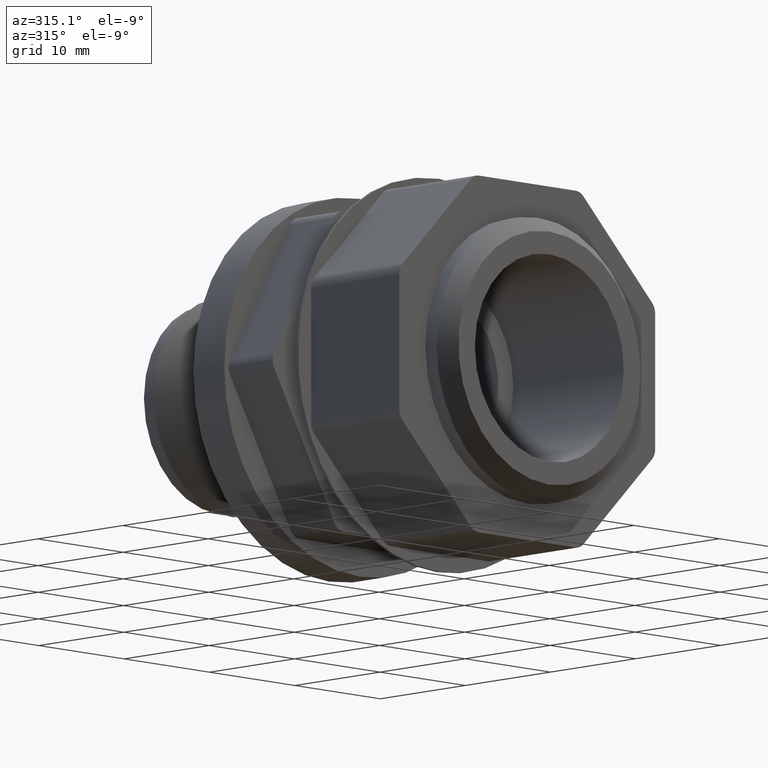
[diagram: clean part render]
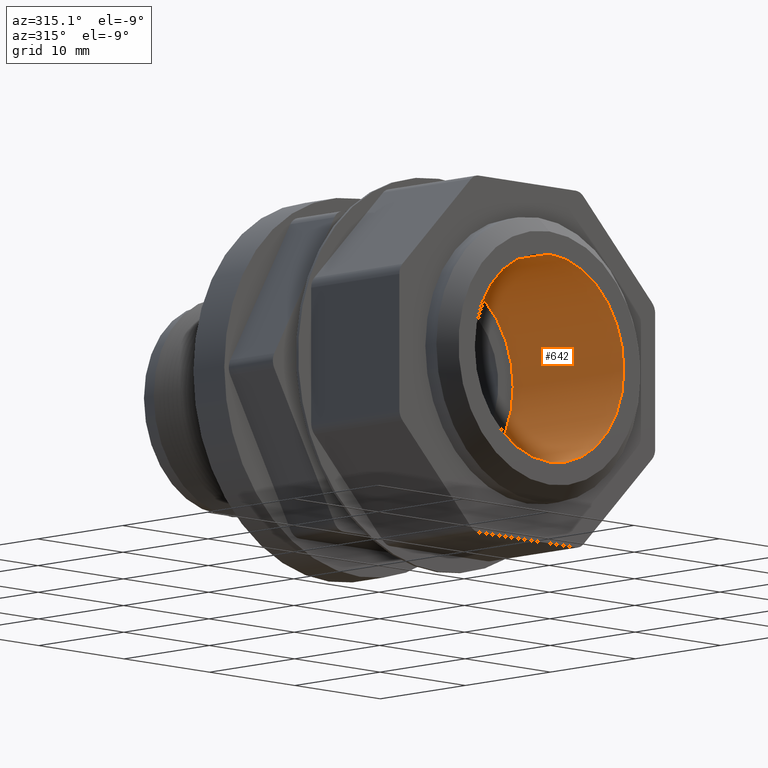
[diagram: same view with one face highlighted and labeled with its STEP entity id]
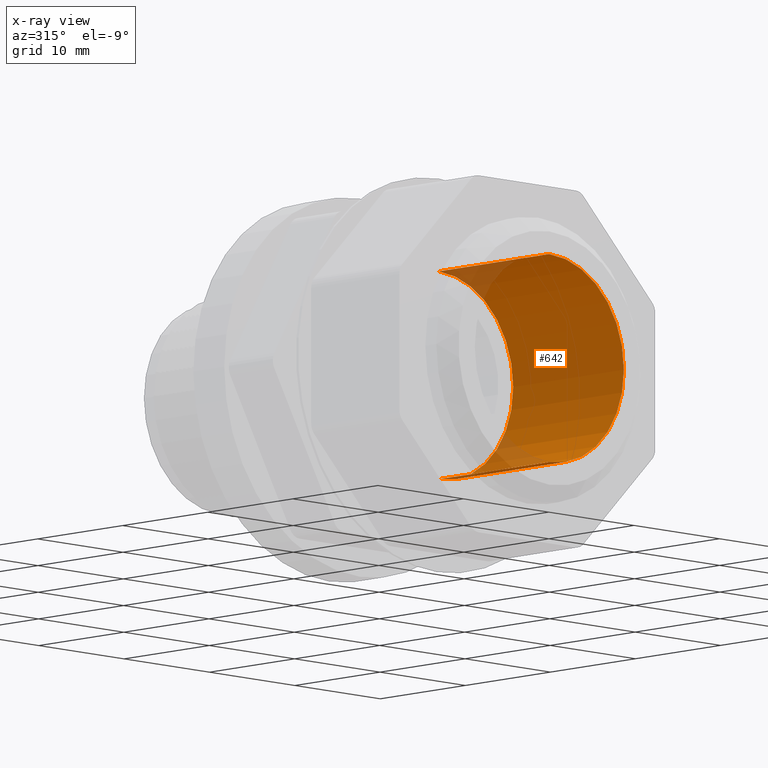
[diagram: x-ray of the same camera — body ghosted, the highlighted face saturated]
A machine part, auxiliary view. The second image highlights one B-rep face of the part: STEP entity #642.
The next image is the same camera in x-ray: the body ghosted, the highlighted face saturated — about 10% of this face is hidden behind the body in this view.
In plain terms, the highlighted cylindrical surface (partial cylindrical patch) has radius 8.7312 mm, axis along (-0, -1, -0).
Its self-contained STEP definition (entity closure, byte-faithful):
#549 = VERTEX_POINT ( 'NONE', #1714 ) ;
#550 = VERTEX_POINT ( 'NONE', #1713 ) ;
#552 = EDGE_CURVE ( 'NONE', #549, #553, #1712, .T. ) ;
#553 = VERTEX_POINT ( 'NONE', #1708 ) ;
#556 = VERTEX_POINT ( 'NONE', #1702 ) ;
#558 = EDGE_CURVE ( 'NONE', #550, #556, #1701, .T. ) ;
#623 = EDGE_CURVE ( 'NONE', #556, #553, #1839, .T. ) ;
#642 = ADVANCED_FACE ( 'NONE', ( #1889 ), #1884, .F. ) ;
#643 = EDGE_LOOP ( 'NONE', ( #644, #645, #647, #648 ) ) ;
#644 = ORIENTED_EDGE ( 'NONE', *, *, #552, .F. ) ;
#645 = ORIENTED_EDGE ( 'NONE', *, *, #646, .F. ) ;
#646 = EDGE_CURVE ( 'NONE', #550, #549, #1879, .T. ) ;
#647 = ORIENTED_EDGE ( 'NONE', *, *, #558, .T. ) ;
#648 = ORIENTED_EDGE ( 'NONE', *, *, #623, .T. ) ;
#1699 = VECTOR ( 'NONE', #1764, 39.37007874015748100 ) ;
#1700 = CARTESIAN_POINT ( 'NONE',  ( 0.0000000000000000000, 0.5120000000000000100, -0.3437500000000000000 ) ) ;
#1701 = LINE ( 'NONE', #1700, #1699 ) ;
#1702 = CARTESIAN_POINT ( 'NONE',  ( 0.0000000000000000000, 0.0000000000000000000, -0.3437500000000000000 ) ) ;
#1708 = CARTESIAN_POINT ( 'NONE',  ( 4.209723372069026300E-017, 0.0000000000000000000, 0.3437500000000000000 ) ) ;
#1709 = DIRECTION ( 'NONE',  ( -0.0000000000000000000, -1.000000000000000000, -0.0000000000000000000 ) ) ;
#1710 = VECTOR ( 'NONE', #1709, 39.37007874015748100 ) ;
#1711 = CARTESIAN_POINT ( 'NONE',  ( 4.209723372069026300E-017, 0.5120000000000000100, 0.3437500000000000000 ) ) ;
#1712 = LINE ( 'NONE', #1711, #1710 ) ;
#1713 = CARTESIAN_POINT ( 'NONE',  ( 0.0000000000000000000, 0.5120000000000000100, -0.3437500000000000000 ) ) ;
#1714 = CARTESIAN_POINT ( 'NONE',  ( 4.209723372069026300E-017, 0.5120000000000000100, 0.3437500000000000000 ) ) ;
#1764 = DIRECTION ( 'NONE',  ( -0.0000000000000000000, -1.000000000000000000, -0.0000000000000000000 ) ) ;
#1830 = DIRECTION ( 'NONE',  ( 0.0000000000000000000, 0.0000000000000000000, -1.000000000000000000 ) ) ;
#1831 = DIRECTION ( 'NONE',  ( 0.0000000000000000000, -1.000000000000000000, 0.0000000000000000000 ) ) ;
#1832 = CARTESIAN_POINT ( 'NONE',  ( 0.0000000000000000000, 0.0000000000000000000, 0.0000000000000000000 ) ) ;
#1833 = AXIS2_PLACEMENT_3D ( 'NONE', #1832, #1831, #1830 ) ;
#1839 = CIRCLE ( 'NONE', #1833, 0.3437500000000000000 ) ;
#1875 = DIRECTION ( 'NONE',  ( 0.0000000000000000000, 0.0000000000000000000, -1.000000000000000000 ) ) ;
#1876 = DIRECTION ( 'NONE',  ( 0.0000000000000000000, -1.000000000000000000, 0.0000000000000000000 ) ) ;
#1877 = CARTESIAN_POINT ( 'NONE',  ( 0.0000000000000000000, 0.5120000000000000100, 0.0000000000000000000 ) ) ;
#1878 = AXIS2_PLACEMENT_3D ( 'NONE', #1877, #1876, #1875 ) ;
#1879 = CIRCLE ( 'NONE', #1878, 0.3437500000000000000 ) ;
#1880 = DIRECTION ( 'NONE',  ( 0.0000000000000000000, 0.0000000000000000000, -1.000000000000000000 ) ) ;
#1881 = DIRECTION ( 'NONE',  ( -0.0000000000000000000, -1.000000000000000000, -0.0000000000000000000 ) ) ;
#1882 = CARTESIAN_POINT ( 'NONE',  ( 0.0000000000000000000, 0.5120000000000000100, 0.0000000000000000000 ) ) ;
#1883 = AXIS2_PLACEMENT_3D ( 'NONE', #1882, #1881, #1880 ) ;
#1884 = CYLINDRICAL_SURFACE ( 'NONE', #1883, 0.3437500000000000000 ) ;
#1889 = FACE_OUTER_BOUND ( 'NONE', #643, .T. ) ;